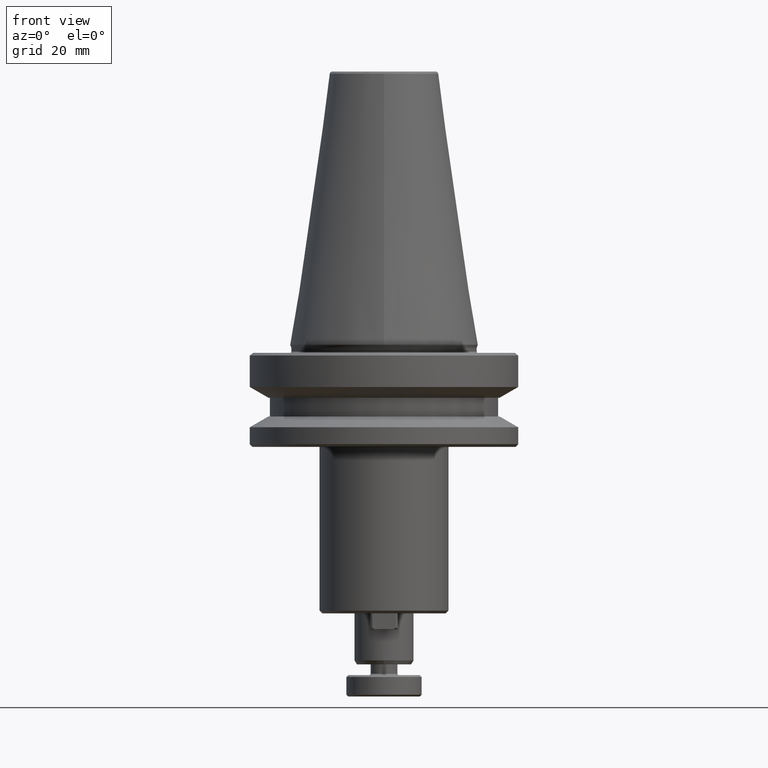
[diagram: clean part render]
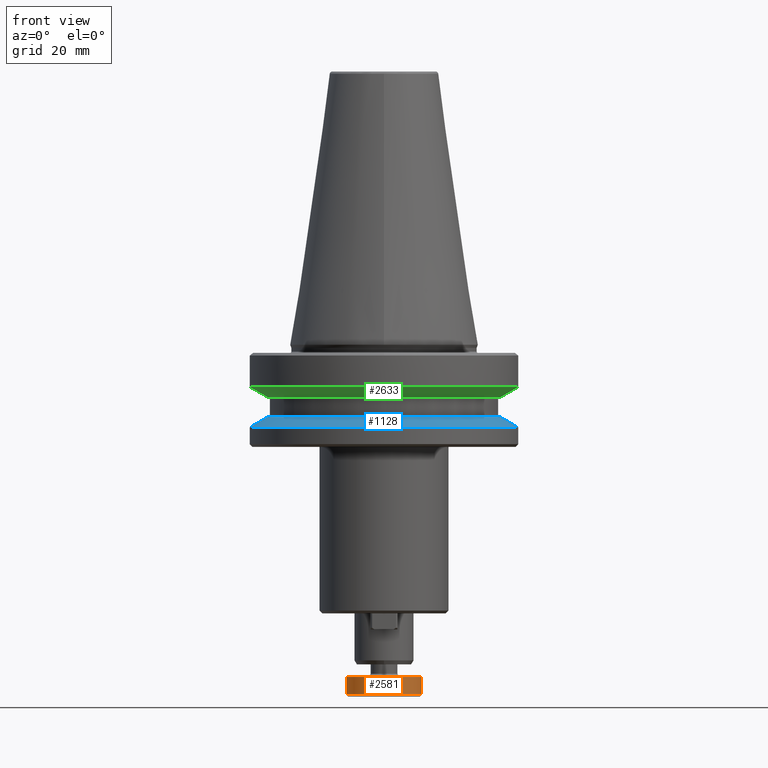
[diagram: same view with three faces highlighted in distinct colors, each labeled with its STEP entity id]
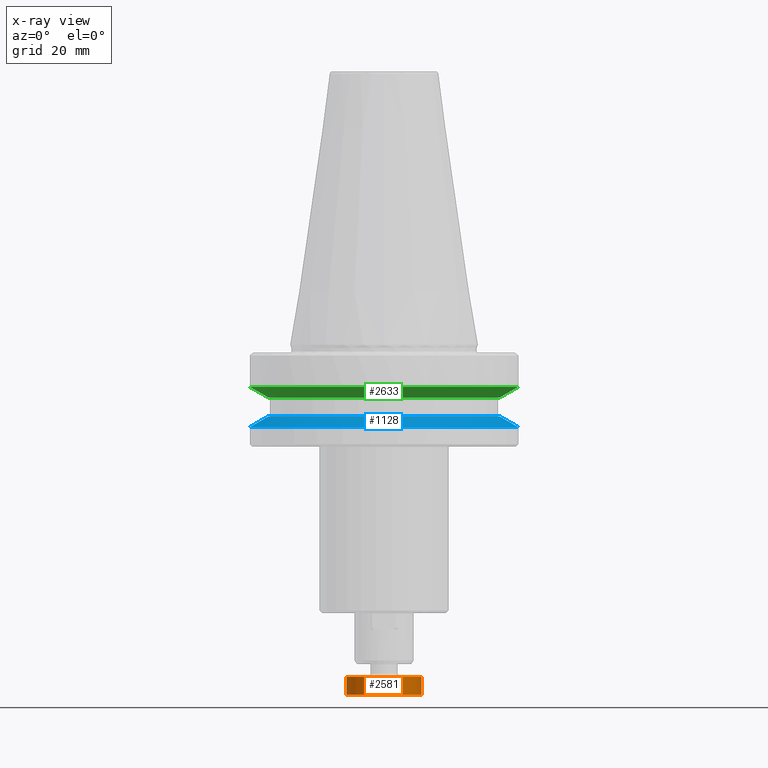
[diagram: x-ray of the same camera — body ghosted, the three highlighted faces saturated]
A machine part, front view with three faces highlighted in distinct colors.
The next image is the same camera in x-ray (body ghosted, the three faces saturated) — at least one of them is partly hidden behind the body in this view.
Their STEP definitions:

[orange] entity #2581 — the highlighted cylindrical surface (partial cylindrical patch) has radius 14 mm, axis along (0, 0, 1).
#71 = VECTOR ( 'NONE', #1479, 1000.000000000000000 ) ;
#227 = VECTOR ( 'NONE', #1660, 1000.000000000000000 ) ;
#349 = DIRECTION ( 'NONE',  ( 0.0000000000000000000, 0.0000000000000000000, 1.000000000000000000 ) ) ;
#370 = DIRECTION ( 'NONE',  ( 1.000000000000000000, 0.0000000000000000000, 0.0000000000000000000 ) ) ;
#375 = CARTESIAN_POINT ( 'NONE',  ( 0.0000000000000000000, 0.0000000000000000000, 0.0000000000000000000 ) ) ;
#468 = ORIENTED_EDGE ( 'NONE', *, *, #1365, .F. ) ;
#499 = CIRCLE ( 'NONE', #1448, 13.99999999999999800 ) ;
#695 = LINE ( 'NONE', #1481, #71 ) ;
#720 = FACE_OUTER_BOUND ( 'NONE', #2280, .T. ) ;
#895 = EDGE_CURVE ( 'NONE', #1769, #1405, #1427, .T. ) ;
#953 = EDGE_CURVE ( 'NONE', #1029, #1894, #695, .T. ) ;
#954 = CARTESIAN_POINT ( 'NONE',  ( -14.00000000000000200, 1.714505518806294800E-015, -123.7000000000000300 ) ) ;
#996 = DIRECTION ( 'NONE',  ( -1.000000000000000000, 0.0000000000000000000, 0.0000000000000000000 ) ) ;
#997 = DIRECTION ( 'NONE',  ( -0.0000000000000000000, -0.0000000000000000000, 1.000000000000000000 ) ) ;
#998 = CARTESIAN_POINT ( 'NONE',  ( 0.0000000000000000000, 0.0000000000000000000, -123.7000000000000300 ) ) ;
#1029 = VERTEX_POINT ( 'NONE', #1399 ) ;
#1037 = DIRECTION ( 'NONE',  ( 1.000000000000000000, 0.0000000000000000000, 0.0000000000000000000 ) ) ;
#1040 = DIRECTION ( 'NONE',  ( 0.0000000000000000000, 0.0000000000000000000, 1.000000000000000000 ) ) ;
#1043 = CARTESIAN_POINT ( 'NONE',  ( 0.0000000000000000000, 0.0000000000000000000, -130.3000000000000700 ) ) ;
#1177 = CYLINDRICAL_SURFACE ( 'NONE', #2699, 13.99999999999999800 ) ;
#1209 = AXIS2_PLACEMENT_3D ( 'NONE', #998, #997, #996 ) ;
#1312 = EDGE_CURVE ( 'NONE', #1769, #1029, #499, .T. ) ;
#1365 = EDGE_CURVE ( 'NONE', #1405, #1894, #1617, .T. ) ;
#1399 = CARTESIAN_POINT ( 'NONE',  ( 13.99999999999997200, 0.0000000000000000000, -130.3000000000000700 ) ) ;
#1405 = VERTEX_POINT ( 'NONE', #954 ) ;
#1427 = LINE ( 'NONE', #1555, #227 ) ;
#1448 = AXIS2_PLACEMENT_3D ( 'NONE', #1043, #1040, #1037 ) ;
#1479 = DIRECTION ( 'NONE',  ( 0.0000000000000000000, 0.0000000000000000000, 1.000000000000000000 ) ) ;
#1481 = CARTESIAN_POINT ( 'NONE',  ( 13.99999999999999800, 0.0000000000000000000, 0.0000000000000000000 ) ) ;
#1555 = CARTESIAN_POINT ( 'NONE',  ( -13.99999999999999800, 1.714505518806294400E-015, 0.0000000000000000000 ) ) ;
#1617 = CIRCLE ( 'NONE', #1209, 14.00000000000000200 ) ;
#1660 = DIRECTION ( 'NONE',  ( 0.0000000000000000000, 0.0000000000000000000, 1.000000000000000000 ) ) ;
#1769 = VERTEX_POINT ( 'NONE', #2492 ) ;
#1828 = ORIENTED_EDGE ( 'NONE', *, *, #1312, .T. ) ;
#1894 = VERTEX_POINT ( 'NONE', #2247 ) ;
#2224 = ORIENTED_EDGE ( 'NONE', *, *, #953, .T. ) ;
#2247 = CARTESIAN_POINT ( 'NONE',  ( 14.00000000000000200, 0.0000000000000000000, -123.7000000000000300 ) ) ;
#2250 = ORIENTED_EDGE ( 'NONE', *, *, #895, .F. ) ;
#2280 = EDGE_LOOP ( 'NONE', ( #2250, #1828, #2224, #468 ) ) ;
#2492 = CARTESIAN_POINT ( 'NONE',  ( -13.99999999999997200, 1.714505518806290900E-015, -130.3000000000000700 ) ) ;
#2581 = ADVANCED_FACE ( 'NONE', ( #720 ), #1177, .T. ) ;
#2699 = AXIS2_PLACEMENT_3D ( 'NONE', #375, #349, #370 ) ;

[blue] entity #1128 — the highlighted conical surface has half-angle 60 deg.
#19 = VECTOR ( 'NONE', #27, 1000.000000000000000 ) ;
#27 = DIRECTION ( 'NONE',  ( -0.8660254037844386000, 0.0000000000000000000, -0.5000000000000001100 ) ) ;
#36 = CARTESIAN_POINT ( 'NONE',  ( -50.00000000000001400, 0.0000000000000000000, -30.69977999677325200 ) ) ;
#160 = EDGE_LOOP ( 'NONE', ( #188, #1435, #2511, #2515 ) ) ;
#188 = ORIENTED_EDGE ( 'NONE', *, *, #1781, .F. ) ;
#332 = DIRECTION ( 'NONE',  ( -1.000000000000000000, 0.0000000000000000000, 0.0000000000000000000 ) ) ;
#337 = DIRECTION ( 'NONE',  ( -0.0000000000000000000, -0.0000000000000000000, 1.000000000000000000 ) ) ;
#340 = CARTESIAN_POINT ( 'NONE',  ( 0.0000000000000000000, 0.0000000000000000000, -30.69977999677324800 ) ) ;
#400 = FACE_OUTER_BOUND ( 'NONE', #160, .T. ) ;
#522 = VERTEX_POINT ( 'NONE', #1687 ) ;
#1025 = VERTEX_POINT ( 'NONE', #1404 ) ;
#1128 = ADVANCED_FACE ( 'NONE', ( #400 ), #2473, .T. ) ;
#1167 = LINE ( 'NONE', #36, #19 ) ;
#1182 = VERTEX_POINT ( 'NONE', #1249 ) ;
#1198 = VERTEX_POINT ( 'NONE', #1254 ) ;
#1249 = CARTESIAN_POINT ( 'NONE',  ( 43.07217782649104300, 5.699027233244276800E-015, -26.69999999999998900 ) ) ;
#1254 = CARTESIAN_POINT ( 'NONE',  ( -43.07217782649104300, 0.0000000000000000000, -26.69999999999998900 ) ) ;
#1306 = DIRECTION ( 'NONE',  ( -1.000000000000000000, 0.0000000000000000000, 0.0000000000000000000 ) ) ;
#1310 = CARTESIAN_POINT ( 'NONE',  ( 0.0000000000000000000, 0.0000000000000000000, -30.69977999677325200 ) ) ;
#1324 = DIRECTION ( 'NONE',  ( 0.0000000000000000000, 0.0000000000000000000, -1.000000000000000000 ) ) ;
#1404 = CARTESIAN_POINT ( 'NONE',  ( -50.00000000000001400, 6.123233995736767700E-015, -30.69977999677324800 ) ) ;
#1435 = ORIENTED_EDGE ( 'NONE', *, *, #2105, .T. ) ;
#1687 = CARTESIAN_POINT ( 'NONE',  ( 50.00000000000001400, 0.0000000000000000000, -30.69977999677324800 ) ) ;
#1781 = EDGE_CURVE ( 'NONE', #1182, #522, #2029, .T. ) ;
#1795 = CIRCLE ( 'NONE', #2636, 50.00000000000000700 ) ;
#1995 = DIRECTION ( 'NONE',  ( -1.000000000000000000, 0.0000000000000000000, 0.0000000000000000000 ) ) ;
#1999 = DIRECTION ( 'NONE',  ( 0.0000000000000000000, 0.0000000000000000000, -1.000000000000000000 ) ) ;
#2005 = CARTESIAN_POINT ( 'NONE',  ( 0.0000000000000000000, 0.0000000000000000000, -26.69999999999998900 ) ) ;
#2029 = LINE ( 'NONE', #2443, #2033 ) ;
#2033 = VECTOR ( 'NONE', #2424, 1000.000000000000000 ) ;
#2037 = AXIS2_PLACEMENT_3D ( 'NONE', #2005, #1999, #1995 ) ;
#2105 = EDGE_CURVE ( 'NONE', #1182, #1198, #2710, .T. ) ;
#2400 = AXIS2_PLACEMENT_3D ( 'NONE', #1310, #1324, #1306 ) ;
#2424 = DIRECTION ( 'NONE',  ( 0.8660254037844386000, 1.060575238724906800E-016, -0.5000000000000001100 ) ) ;
#2443 = CARTESIAN_POINT ( 'NONE',  ( 50.00000000000001400, 6.123233995736767700E-015, -30.69977999677325200 ) ) ;
#2473 = CONICAL_SURFACE ( 'NONE', #2400, 50.00000000000001400, 1.047197551196597600 ) ;
#2511 = ORIENTED_EDGE ( 'NONE', *, *, #2620, .T. ) ;
#2515 = ORIENTED_EDGE ( 'NONE', *, *, #2580, .T. ) ;
#2580 = EDGE_CURVE ( 'NONE', #1025, #522, #1795, .T. ) ;
#2620 = EDGE_CURVE ( 'NONE', #1198, #1025, #1167, .T. ) ;
#2636 = AXIS2_PLACEMENT_3D ( 'NONE', #340, #337, #332 ) ;
#2710 = CIRCLE ( 'NONE', #2037, 43.07217782649104300 ) ;

[green] entity #2633 — the highlighted conical surface has half-angle 60 deg.
#14 = DIRECTION ( 'NONE',  ( 1.000000000000000000, 0.0000000000000000000, 0.0000000000000000000 ) ) ;
#119 = CARTESIAN_POINT ( 'NONE',  ( 0.0000000000000000000, 0.0000000000000000000, -15.70022000322674000 ) ) ;
#164 = ORIENTED_EDGE ( 'NONE', *, *, #259, .F. ) ;
#233 = CARTESIAN_POINT ( 'NONE',  ( 0.0000000000000000000, 0.0000000000000000000, -19.70000000000001000 ) ) ;
#259 = EDGE_CURVE ( 'NONE', #883, #1387, #1514, .T. ) ;
#287 = DIRECTION ( 'NONE',  ( 1.000000000000000000, 0.0000000000000000000, 0.0000000000000000000 ) ) ;
#288 = DIRECTION ( 'NONE',  ( 0.0000000000000000000, 0.0000000000000000000, 1.000000000000000000 ) ) ;
#396 = EDGE_CURVE ( 'NONE', #1387, #2513, #793, .T. ) ;
#506 = EDGE_CURVE ( 'NONE', #2001, #2513, #1671, .T. ) ;
#556 = AXIS2_PLACEMENT_3D ( 'NONE', #1713, #1919, #1916 ) ;
#667 = CARTESIAN_POINT ( 'NONE',  ( 50.00000000000000000, 0.0000000000000000000, -15.70022000322675400 ) ) ;
#730 = ORIENTED_EDGE ( 'NONE', *, *, #2664, .T. ) ;
#743 = ORIENTED_EDGE ( 'NONE', *, *, #506, .T. ) ;
#793 = CIRCLE ( 'NONE', #556, 50.00000000000000000 ) ;
#861 = VECTOR ( 'NONE', #1691, 1000.000000000000000 ) ;
#883 = VERTEX_POINT ( 'NONE', #2149 ) ;
#944 = ORIENTED_EDGE ( 'NONE', *, *, #396, .F. ) ;
#967 = CARTESIAN_POINT ( 'NONE',  ( -50.00000000000000000, 6.123233995736765300E-015, -15.70022000322675400 ) ) ;
#1031 = CONICAL_SURFACE ( 'NONE', #2217, 50.00000000000002100, 1.047197551196597900 ) ;
#1303 = DIRECTION ( 'NONE',  ( 0.0000000000000000000, 0.0000000000000000000, 1.000000000000000000 ) ) ;
#1387 = VERTEX_POINT ( 'NONE', #967 ) ;
#1514 = LINE ( 'NONE', #2025, #2126 ) ;
#1671 = LINE ( 'NONE', #1678, #861 ) ;
#1678 = CARTESIAN_POINT ( 'NONE',  ( 50.00000000000002100, 0.0000000000000000000, -15.70022000322674000 ) ) ;
#1691 = DIRECTION ( 'NONE',  ( 0.8660254037844387100, 0.0000000000000000000, 0.4999999999999998900 ) ) ;
#1713 = CARTESIAN_POINT ( 'NONE',  ( 0.0000000000000000000, 0.0000000000000000000, -15.70022000322675400 ) ) ;
#1723 = AXIS2_PLACEMENT_3D ( 'NONE', #233, #288, #287 ) ;
#1895 = DIRECTION ( 'NONE',  ( -0.8660254037844387100, 1.060575238724906900E-016, 0.4999999999999998900 ) ) ;
#1916 = DIRECTION ( 'NONE',  ( 1.000000000000000000, 0.0000000000000000000, 0.0000000000000000000 ) ) ;
#1919 = DIRECTION ( 'NONE',  ( 0.0000000000000000000, 0.0000000000000000000, 1.000000000000000000 ) ) ;
#1988 = CIRCLE ( 'NONE', #1723, 43.07217782649103600 ) ;
#2001 = VERTEX_POINT ( 'NONE', #2084 ) ;
#2025 = CARTESIAN_POINT ( 'NONE',  ( -50.00000000000002100, 6.123233995736768500E-015, -15.70022000322674000 ) ) ;
#2084 = CARTESIAN_POINT ( 'NONE',  ( 43.07217782649103600, 0.0000000000000000000, -19.70000000000001000 ) ) ;
#2086 = EDGE_LOOP ( 'NONE', ( #164, #730, #743, #944 ) ) ;
#2126 = VECTOR ( 'NONE', #1895, 1000.000000000000000 ) ;
#2149 = CARTESIAN_POINT ( 'NONE',  ( -43.07217782649103600, 5.699027233244276000E-015, -19.70000000000001000 ) ) ;
#2211 = FACE_OUTER_BOUND ( 'NONE', #2086, .T. ) ;
#2217 = AXIS2_PLACEMENT_3D ( 'NONE', #119, #1303, #14 ) ;
#2513 = VERTEX_POINT ( 'NONE', #667 ) ;
#2633 = ADVANCED_FACE ( 'NONE', ( #2211 ), #1031, .T. ) ;
#2664 = EDGE_CURVE ( 'NONE', #883, #2001, #1988, .T. ) ;